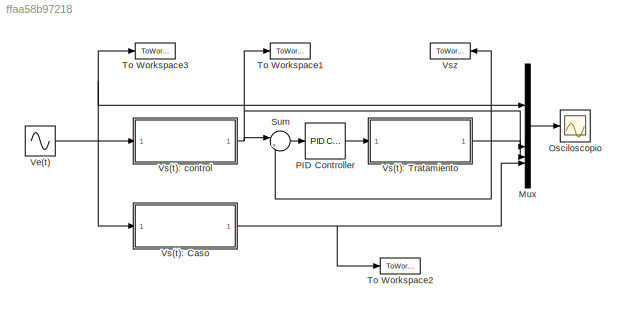
MODEL slx_ffaa58b97218
KIND model
CONFIG AbsTol = auto
CONFIG EnableMultiTasking = off
CONFIG FixedStep = auto
CONFIG MaxStep = 0.001
CONFIG MinStep = auto
CONFIG RelTol = 1e-3
CONFIG SampleTimeConstraint = Unconstrained
CONFIG SolverName = VariableStepAuto
CONFIG StartTime = 0.0
CONFIG StopTime = 30
BLOCK [Mux] Mux
  DisplayOption = bar
BLOCK [Scope] Osciloscopio
  Floating = off
  NumInputPorts = 1
  ScopeSpecificationString = Simulink.scopes.TimeScopeBlockCfg('CurrentConfiguration', extmgr.ConfigurationSet(extmgr.Configuration('Core','General UI',true,'FigureColor',[1 1 1]),extmgr.Configuration('Core','Source UI',true),extmgr.Configuration('Sources','WiredSimulink',true),extmgr.Configuration('Visuals','Time Domain',true,'SerializedDisplays',{struct('MinYLimReal','-3.125','MaxYLimReal','3.125','YLabelReal','V(t) [volts]...<+2015ch>
BLOCK [Reference] PID Controller  REF=slpidlib/PID Controller
  LibrarySourceBlock = simulink/Continuous/PID Controller
  SourceBlock = slpidlib/PID Controller
  SourceType = PID 1dof
BLOCK [Sum] Sum
  Inputs = |+-
BLOCK [ToWorkspace] To Workspace1
  FixptAsFi = on
  MaxDataPoints = inf
  SampleTime = -1
  VariableName = Vsx
BLOCK [ToWorkspace] To Workspace2
  FixptAsFi = on
  MaxDataPoints = inf
  SampleTime = -1
  VariableName = Vsy
BLOCK [ToWorkspace] To Workspace3
  FixptAsFi = on
  MaxDataPoints = inf
  SampleTime = -1
  VariableName = Ve
BLOCK [Sin] Ve(t)
  Amplitude = 1.5
  Frequency = pi
  SampleTime = 0
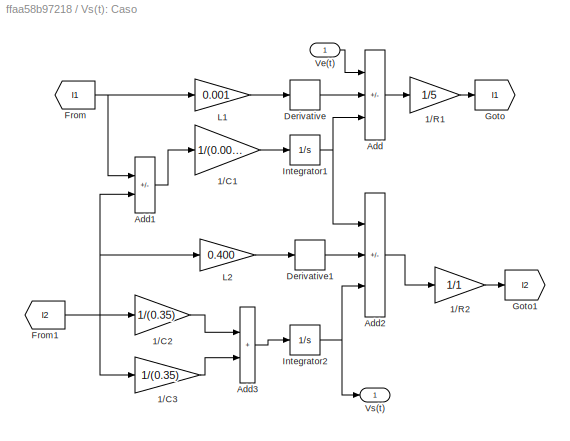
BLOCK [SubSystem] Vs(t): Caso
BLOCK [Gain] Vs(t): Caso/1//C1
  Gain = 1/(0.005)
BLOCK [Gain] Vs(t): Caso/1//C2
  Gain = 1/(0.35)
BLOCK [Gain] Vs(t): Caso/1//C3
  Gain = 1/(0.35)
BLOCK [Gain] Vs(t): Caso/1//R1
  Gain = 1/5
BLOCK [Gain] Vs(t): Caso/1//R2
  Gain = 1/1
BLOCK [Sum] Vs(t): Caso/Add
  IconShape = rectangular
  Inputs = +--
BLOCK [Sum] Vs(t): Caso/Add1
  IconShape = rectangular
  Inputs = +-
BLOCK [Sum] Vs(t): Caso/Add2
  IconShape = rectangular
  Inputs = +--
BLOCK [Sum] Vs(t): Caso/Add3
  IconShape = rectangular
BLOCK [Derivative] Vs(t): Caso/Derivative
BLOCK [Derivative] Vs(t): Caso/Derivative1
BLOCK [From] Vs(t): Caso/From
  GotoTag = I1
BLOCK [From] Vs(t): Caso/From1
  GotoTag = I2
BLOCK [Goto] Vs(t): Caso/Goto
  GotoTag = I1
BLOCK [Goto] Vs(t): Caso/Goto1
  GotoTag = I2
BLOCK [Integrator] Vs(t): Caso/Integrator1
BLOCK [Integrator] Vs(t): Caso/Integrator2
BLOCK [Gain] Vs(t): Caso/L1
  Gain = 0.001
BLOCK [Gain] Vs(t): Caso/L2
  Gain = 0.400
BLOCK [Inport] Vs(t): Caso/Ve(t)
BLOCK [Outport] Vs(t): Caso/Vs(t)
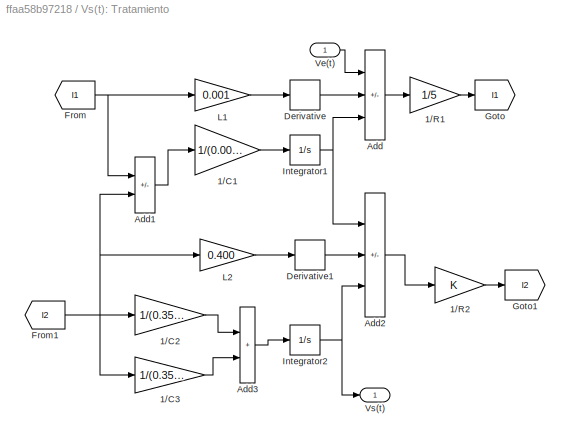
BLOCK [SubSystem] Vs(t): Tratamiento
BLOCK [Gain] Vs(t): Tratamiento/1//C1
  Gain = 1/(0.005)
BLOCK [Gain] Vs(t): Tratamiento/1//C2
  Gain = 1/(0.350)
BLOCK [Gain] Vs(t): Tratamiento/1//C3
  Gain = 1/(0.350)
BLOCK [Gain] Vs(t): Tratamiento/1//R1
  Gain = 1/5
BLOCK [Gain] Vs(t): Tratamiento/1//R2
BLOCK [Sum] Vs(t): Tratamiento/Add
  IconShape = rectangular
  Inputs = +--
BLOCK [Sum] Vs(t): Tratamiento/Add1
  IconShape = rectangular
  Inputs = +-
BLOCK [Sum] Vs(t): Tratamiento/Add2
  IconShape = rectangular
  Inputs = +--
BLOCK [Sum] Vs(t): Tratamiento/Add3
  IconShape = rectangular
BLOCK [Derivative] Vs(t): Tratamiento/Derivative
BLOCK [Derivative] Vs(t): Tratamiento/Derivative1
BLOCK [From] Vs(t): Tratamiento/From
  GotoTag = I1
BLOCK [From] Vs(t): Tratamiento/From1
  GotoTag = I2
BLOCK [Goto] Vs(t): Tratamiento/Goto
  GotoTag = I1
BLOCK [Goto] Vs(t): Tratamiento/Goto1
  GotoTag = I2
BLOCK [Integrator] Vs(t): Tratamiento/Integrator1
BLOCK [Integrator] Vs(t): Tratamiento/Integrator2
BLOCK [Gain] Vs(t): Tratamiento/L1
  Gain = 0.001
BLOCK [Gain] Vs(t): Tratamiento/L2
  Gain = 0.400
BLOCK [Inport] Vs(t): Tratamiento/Ve(t)
BLOCK [Outport] Vs(t): Tratamiento/Vs(t)
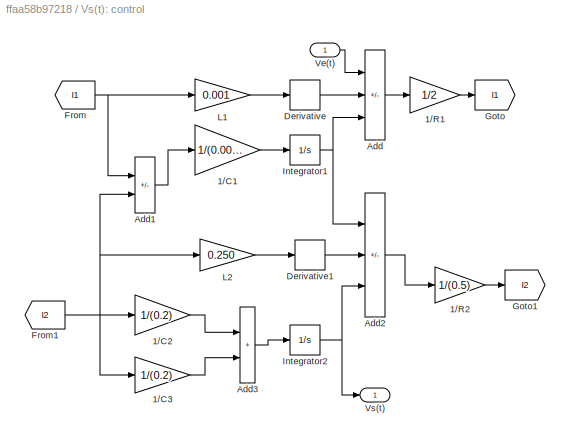
BLOCK [SubSystem] Vs(t): control
BLOCK [Gain] Vs(t): control/1//C1
  Gain = 1/(0.005)
BLOCK [Gain] Vs(t): control/1//C2
  Gain = 1/(0.2)
BLOCK [Gain] Vs(t): control/1//C3
  Gain = 1/(0.2)
BLOCK [Gain] Vs(t): control/1//R1
  Gain = 1/2
BLOCK [Gain] Vs(t): control/1//R2
  Gain = 1/(0.5)
BLOCK [Sum] Vs(t): control/Add
  IconShape = rectangular
  Inputs = +--
BLOCK [Sum] Vs(t): control/Add1
  IconShape = rectangular
  Inputs = +-
BLOCK [Sum] Vs(t): control/Add2
  IconShape = rectangular
  Inputs = +--
BLOCK [Sum] Vs(t): control/Add3
  IconShape = rectangular
BLOCK [Derivative] Vs(t): control/Derivative
BLOCK [Derivative] Vs(t): control/Derivative1
BLOCK [From] Vs(t): control/From
  GotoTag = I1
BLOCK [From] Vs(t): control/From1
  GotoTag = I2
BLOCK [Goto] Vs(t): control/Goto
  GotoTag = I1
BLOCK [Goto] Vs(t): control/Goto1
  GotoTag = I2
BLOCK [Integrator] Vs(t): control/Integrator1
BLOCK [Integrator] Vs(t): control/Integrator2
BLOCK [Gain] Vs(t): control/L1
  Gain = 0.001
BLOCK [Gain] Vs(t): control/L2
  Gain = 0.250
BLOCK [Inport] Vs(t): control/Ve(t)
BLOCK [Outport] Vs(t): control/Vs(t)
BLOCK [ToWorkspace] Vsz
  FixptAsFi = on
  MaxDataPoints = inf
  SampleTime = -1
  Tag = Ve
  VariableName = Vsz
LINE Mux:1 -> Osciloscopio:1
LINE PID Controller:1 -> Vs(t): Tratamiento:1
LINE Sum:1 -> PID Controller:1
NET Ve(t):1 -> Mux:1, To Workspace3:1, Vs(t): Caso:1, Vs(t): control:1
LINE Vs(t): Caso/1//C1:1 -> Vs(t): Caso/Integrator1:1
LINE Vs(t): Caso/1//C2:1 -> Vs(t): Caso/Add3:1
LINE Vs(t): Caso/1//C3:1 -> Vs(t): Caso/Add3:2
LINE Vs(t): Caso/1//R1:1 -> Vs(t): Caso/Goto:1
LINE Vs(t): Caso/1//R2:1 -> Vs(t): Caso/Goto1:1
LINE Vs(t): Caso/Add1:1 -> Vs(t): Caso/1//C1:1
LINE Vs(t): Caso/Add2:1 -> Vs(t): Caso/1//R2:1
LINE Vs(t): Caso/Add3:1 -> Vs(t): Caso/Integrator2:1
LINE Vs(t): Caso/Add:1 -> Vs(t): Caso/1//R1:1
LINE Vs(t): Caso/Derivative1:1 -> Vs(t): Caso/Add2:2
LINE Vs(t): Caso/Derivative:1 -> Vs(t): Caso/Add:2
NET Vs(t): Caso/From1:1 -> Vs(t): Caso/1//C2:1, Vs(t): Caso/1//C3:1, Vs(t): Caso/Add1:2, Vs(t): Caso/L2:1
NET Vs(t): Caso/From:1 -> Vs(t): Caso/Add1:1, Vs(t): Caso/L1:1
NET Vs(t): Caso/Integrator1:1 -> Vs(t): Caso/Add2:1, Vs(t): Caso/Add:3
NET Vs(t): Caso/Integrator2:1 -> Vs(t): Caso/Add2:3, Vs(t): Caso/Vs(t):1
LINE Vs(t): Caso/L1:1 -> Vs(t): Caso/Derivative:1
LINE Vs(t): Caso/L2:1 -> Vs(t): Caso/Derivative1:1
LINE Vs(t): Caso/Ve(t):1 -> Vs(t): Caso/Add:1
NET Vs(t): Caso:1 -> Mux:4, To Workspace2:1
LINE Vs(t): Tratamiento/1//C1:1 -> Vs(t): Tratamiento/Integrator1:1
LINE Vs(t): Tratamiento/1//C2:1 -> Vs(t): Tratamiento/Add3:1
LINE Vs(t): Tratamiento/1//C3:1 -> Vs(t): Tratamiento/Add3:2
LINE Vs(t): Tratamiento/1//R1:1 -> Vs(t): Tratamiento/Goto:1
LINE Vs(t): Tratamiento/1//R2:1 -> Vs(t): Tratamiento/Goto1:1
LINE Vs(t): Tratamiento/Add1:1 -> Vs(t): Tratamiento/1//C1:1
LINE Vs(t): Tratamiento/Add2:1 -> Vs(t): Tratamiento/1//R2:1
LINE Vs(t): Tratamiento/Add3:1 -> Vs(t): Tratamiento/Integrator2:1
LINE Vs(t): Tratamiento/Add:1 -> Vs(t): Tratamiento/1//R1:1
LINE Vs(t): Tratamiento/Derivative1:1 -> Vs(t): Tratamiento/Add2:2
LINE Vs(t): Tratamiento/Derivative:1 -> Vs(t): Tratamiento/Add:2
NET Vs(t): Tratamiento/From1:1 -> Vs(t): Tratamiento/1//C2:1, Vs(t): Tratamiento/1//C3:1, Vs(t): Tratamiento/Add1:2, Vs(t): Tratamiento/L2:1
NET Vs(t): Tratamiento/From:1 -> Vs(t): Tratamiento/Add1:1, Vs(t): Tratamiento/L1:1
NET Vs(t): Tratamiento/Integrator1:1 -> Vs(t): Tratamiento/Add2:1, Vs(t): Tratamiento/Add:3
NET Vs(t): Tratamiento/Integrator2:1 -> Vs(t): Tratamiento/Add2:3, Vs(t): Tratamiento/Vs(t):1
LINE Vs(t): Tratamiento/L1:1 -> Vs(t): Tratamiento/Derivative:1
LINE Vs(t): Tratamiento/L2:1 -> Vs(t): Tratamiento/Derivative1:1
LINE Vs(t): Tratamiento/Ve(t):1 -> Vs(t): Tratamiento/Add:1
NET Vs(t): Tratamiento:1 -> Mux:3, Sum:2, Vsz:1
LINE Vs(t): control/1//C1:1 -> Vs(t): control/Integrator1:1
LINE Vs(t): control/1//C2:1 -> Vs(t): control/Add3:1
LINE Vs(t): control/1//C3:1 -> Vs(t): control/Add3:2
LINE Vs(t): control/1//R1:1 -> Vs(t): control/Goto:1
LINE Vs(t): control/1//R2:1 -> Vs(t): control/Goto1:1
LINE Vs(t): control/Add1:1 -> Vs(t): control/1//C1:1
LINE Vs(t): control/Add2:1 -> Vs(t): control/1//R2:1
LINE Vs(t): control/Add3:1 -> Vs(t): control/Integrator2:1
LINE Vs(t): control/Add:1 -> Vs(t): control/1//R1:1
LINE Vs(t): control/Derivative1:1 -> Vs(t): control/Add2:2
LINE Vs(t): control/Derivative:1 -> Vs(t): control/Add:2
NET Vs(t): control/From1:1 -> Vs(t): control/1//C2:1, Vs(t): control/1//C3:1, Vs(t): control/Add1:2, Vs(t): control/L2:1
NET Vs(t): control/From:1 -> Vs(t): control/Add1:1, Vs(t): control/L1:1
NET Vs(t): control/Integrator1:1 -> Vs(t): control/Add2:1, Vs(t): control/Add:3
NET Vs(t): control/Integrator2:1 -> Vs(t): control/Add2:3, Vs(t): control/Vs(t):1
LINE Vs(t): control/L1:1 -> Vs(t): control/Derivative:1
LINE Vs(t): control/L2:1 -> Vs(t): control/Derivative1:1
LINE Vs(t): control/Ve(t):1 -> Vs(t): control/Add:1
NET Vs(t): control:1 -> Mux:2, Sum:1, To Workspace1:1
note: NET lines group one-source signal fan-out (src -> all destinations, sorted); 1:1 wires keep LINE
